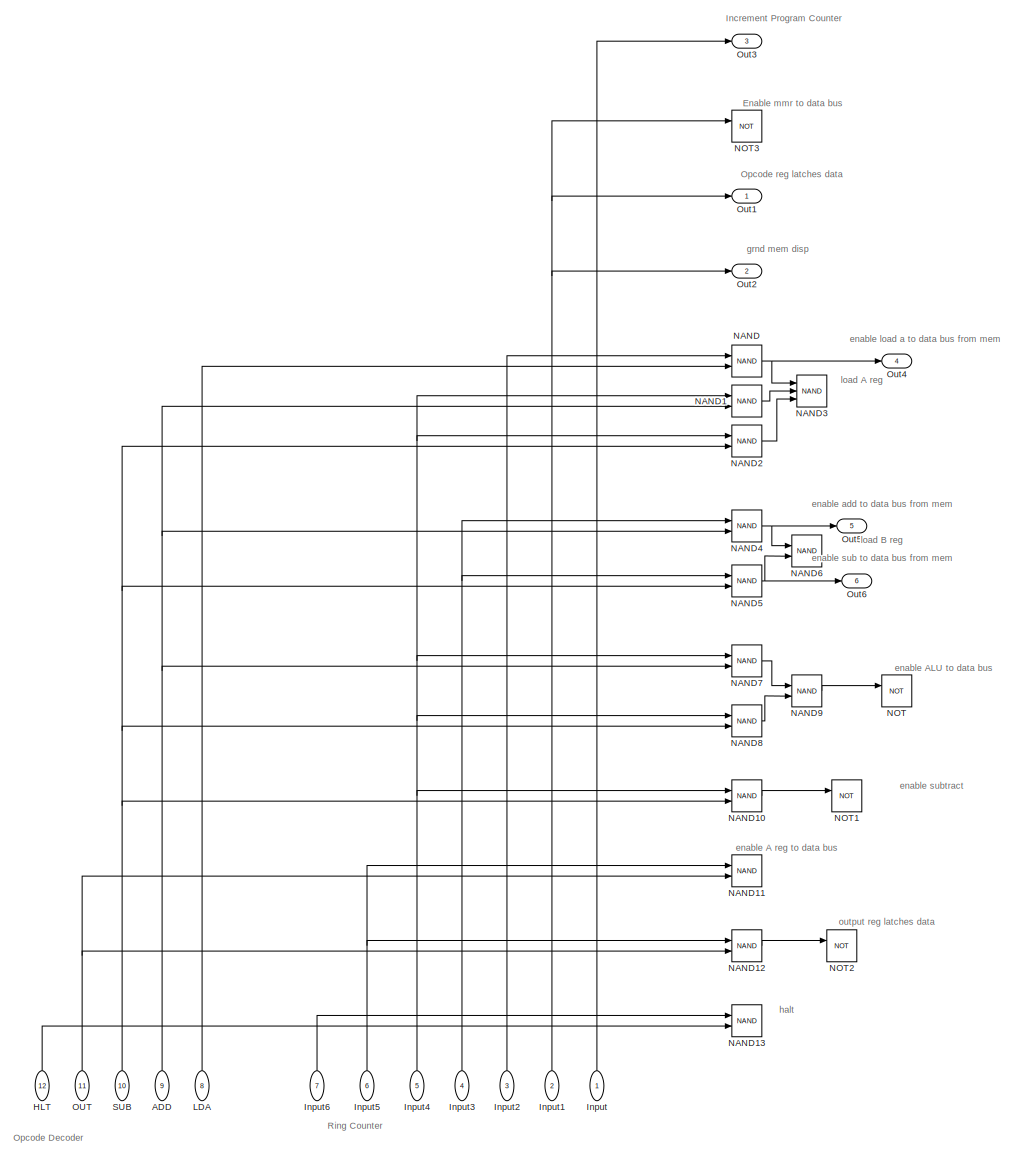
[diagram: root canvas - part 1/1, most of the canvas]
MODEL slx_bdb4d2c2021e
KIND model
CONFIG AbsTol = auto
CONFIG EnableMultiTasking = off
CONFIG FixedStep = auto
CONFIG MaxStep = auto
CONFIG MinStep = auto
CONFIG RelTol = 1e-3
CONFIG SampleTimeConstraint = Unconstrained
CONFIG SolverName = VariableStepAuto
CONFIG StartTime = 0.0
CONFIG StopTime = 10.0
BLOCK [Inport] ADD
  Port = 9
BLOCK [Inport] HLT
  Port = 12
BLOCK [Inport] Input
  NameLocation = right
BLOCK [Inport] Input1
  NameLocation = right
  Port = 2
BLOCK [Inport] Input2
  NameLocation = right
  Port = 3
BLOCK [Inport] Input3
  NameLocation = right
  Port = 4
BLOCK [Inport] Input4
  NameLocation = right
  Port = 5
BLOCK [Inport] Input5
  NameLocation = right
  Port = 6
BLOCK [Inport] Input6
  NameLocation = right
  Port = 7
BLOCK [Inport] LDA
  Port = 8
BLOCK [Logic] NAND
  AllPortsSameDT = off
  IconShape = distinctive
  Operator = NAND
  OutDataTypeStr = boolean
BLOCK [Logic] NAND1
  AllPortsSameDT = off
  IconShape = distinctive
  Operator = NAND
  OutDataTypeStr = boolean
BLOCK [Logic] NAND10
  AllPortsSameDT = off
  IconShape = distinctive
  Operator = NAND
  OutDataTypeStr = boolean
BLOCK [Logic] NAND11
  AllPortsSameDT = off
  IconShape = distinctive
  Operator = NAND
  OutDataTypeStr = boolean
BLOCK [Logic] NAND12
  AllPortsSameDT = off
  IconShape = distinctive
  Operator = NAND
  OutDataTypeStr = boolean
BLOCK [Logic] NAND13
  AllPortsSameDT = off
  IconShape = distinctive
  Operator = NAND
  OutDataTypeStr = boolean
BLOCK [Logic] NAND2
  AllPortsSameDT = off
  IconShape = distinctive
  Operator = NAND
  OutDataTypeStr = boolean
BLOCK [Logic] NAND3
  AllPortsSameDT = off
  IconShape = distinctive
  Inputs = 3
  Operator = NAND
  OutDataTypeStr = boolean
BLOCK [Logic] NAND4
  AllPortsSameDT = off
  IconShape = distinctive
  Operator = NAND
  OutDataTypeStr = boolean
BLOCK [Logic] NAND5
  AllPortsSameDT = off
  IconShape = distinctive
  Operator = NAND
  OutDataTypeStr = boolean
BLOCK [Logic] NAND6
  AllPortsSameDT = off
  IconShape = distinctive
  Operator = NAND
  OutDataTypeStr = boolean
BLOCK [Logic] NAND7
  AllPortsSameDT = off
  IconShape = distinctive
  Operator = NAND
  OutDataTypeStr = boolean
BLOCK [Logic] NAND8
  AllPortsSameDT = off
  IconShape = distinctive
  Operator = NAND
  OutDataTypeStr = boolean
BLOCK [Logic] NAND9
  AllPortsSameDT = off
  IconShape = distinctive
  Operator = NAND
  OutDataTypeStr = boolean
BLOCK [Logic] NOT
  AllPortsSameDT = off
  IconShape = distinctive
  Operator = NOT
  OutDataTypeStr = boolean
BLOCK [Logic] NOT1
  AllPortsSameDT = off
  IconShape = distinctive
  Operator = NOT
  OutDataTypeStr = boolean
BLOCK [Logic] NOT2
  AllPortsSameDT = off
  IconShape = distinctive
  Operator = NOT
  OutDataTypeStr = boolean
BLOCK [Logic] NOT3
  AllPortsSameDT = off
  IconShape = distinctive
  Operator = NOT
  OutDataTypeStr = boolean
BLOCK [Inport] OUT
  Port = 11
BLOCK [Outport] Out1
BLOCK [Outport] Out2
  Port = 2
BLOCK [Outport] Out3
  Port = 3
BLOCK [Outport] Out4
  Port = 4
BLOCK [Outport] Out5
  Port = 5
BLOCK [Outport] Out6
  Port = 6
BLOCK [Inport] SUB
  Port = 10
ANNOTATION (root): Ring Counter
ANNOTATION (root): Opcode Decoder
ANNOTATION (root): Enable mmr to data bus
ANNOTATION (root): Increment Program Counter
ANNOTATION (root): Opcode reg latches data
ANNOTATION (root): enable A reg to data bus
ANNOTATION (root): enable ALU to data bus
ANNOTATION (root): enable add to data bus from mem
ANNOTATION (root): enable load a to data bus from mem
ANNOTATION (root): enable sub to data bus from mem
ANNOTATION (root): enable subtract
ANNOTATION (root): grnd mem disp
ANNOTATION (root): halt
ANNOTATION (root): load A reg
ANNOTATION (root): load B reg
ANNOTATION (root): output reg latches data
NET ADD:1 -> NAND1:2, NAND4:2, NAND7:2
LINE HLT:1 -> NAND13:2
NET Input1:1 -> NOT3:1, Out1:1, Out2:1
LINE Input2:1 -> NAND:1
NET Input3:1 -> NAND4:1, NAND5:1
NET Input4:1 -> NAND10:1, NAND1:1, NAND2:1, NAND7:1, NAND8:1
NET Input5:1 -> NAND11:1, NAND12:1
LINE Input6:1 -> NAND13:1
LINE Input:1 -> Out3:1
LINE LDA:1 -> NAND:2
LINE NAND10:1 -> NOT1:1
LINE NAND12:1 -> NOT2:1
LINE NAND1:1 -> NAND3:2
LINE NAND2:1 -> NAND3:3
NET NAND4:1 -> NAND6:1, Out5:1
NET NAND5:1 -> NAND6:2, Out6:1
LINE NAND7:1 -> NAND9:1
LINE NAND8:1 -> NAND9:2
LINE NAND9:1 -> NOT:1
NET NAND:1 -> NAND3:1, Out4:1
NET OUT:1 -> NAND11:2, NAND12:2
NET SUB:1 -> NAND10:2, NAND2:2, NAND5:2, NAND8:2
note: NET lines group one-source signal fan-out (src -> all destinations, sorted); 1:1 wires keep LINE
